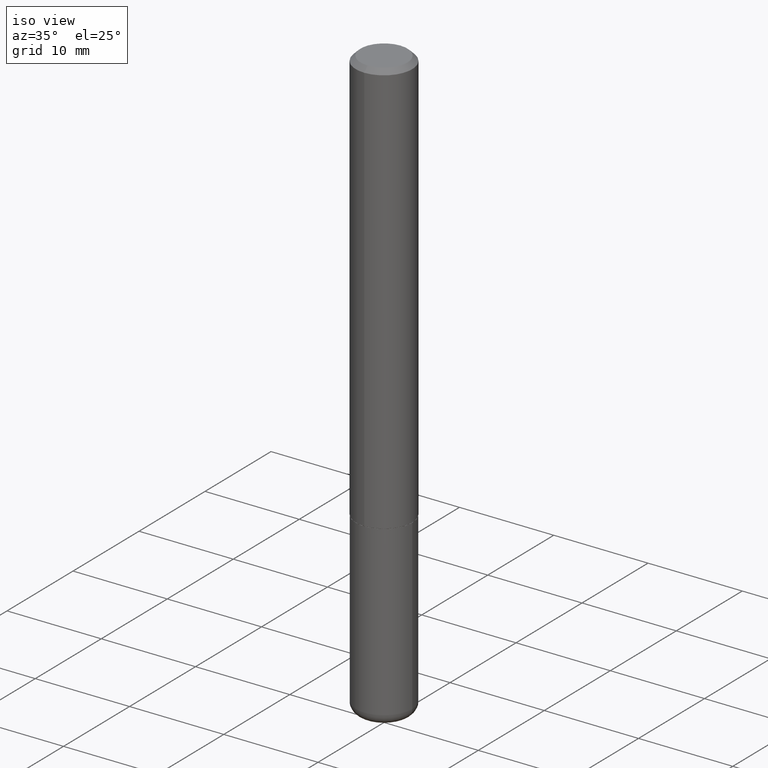
[diagram: clean part render]
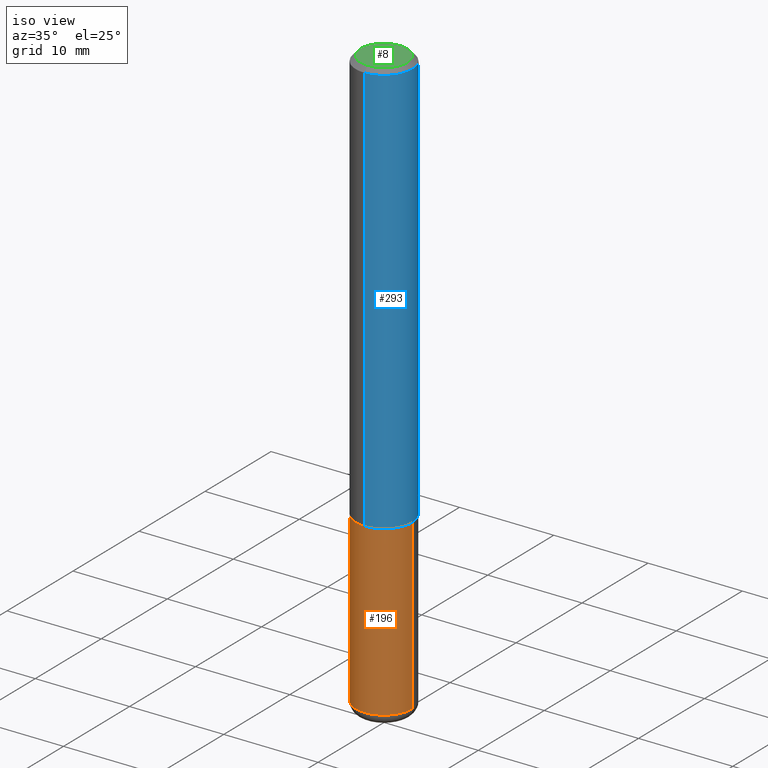
[diagram: same view with three faces highlighted in distinct colors, each labeled with its STEP entity id]
A machine part, iso view with three faces highlighted in distinct colors.
Their STEP definitions:

[orange] entity #196 — the highlighted cylindrical surface (edge-blend (fillet) strip) has radius 2.9997 mm, axis along (-0, 0, 1).
#9 = CARTESIAN_POINT ( 'NONE',  ( 0.1181000000000000383, -6.872981015512730918E-15, -1.732300000000000173 ) ) ;
#11 = CARTESIAN_POINT ( 'NONE',  ( 0.1180999999999999273, -9.327841544853345478E-15, -2.435400000000000453 ) ) ;
#19 = VECTOR ( 'NONE', #417, 39.37007874015748143 ) ;
#30 = LINE ( 'NONE', #286, #19 ) ;
#39 = DIRECTION ( 'NONE',  ( -2.445468806185136877E-29, 3.491481338843145188E-15, 1.000000000000000000 ) ) ;
#61 = CARTESIAN_POINT ( 'NONE',  ( 0.000000000000000000, 0.000000000000000000, 0.000000000000000000 ) ) ;
#67 = ORIENTED_EDGE ( 'NONE', *, *, #366, .T. ) ;
#70 = EDGE_CURVE ( 'NONE', #325, #315, #30, .T. ) ;
#124 = DIRECTION ( 'NONE',  ( -2.445468806185136597E-29, 3.491481338843145583E-15, 1.000000000000000000 ) ) ;
#125 = ORIENTED_EDGE ( 'NONE', *, *, #344, .F. ) ;
#126 = DIRECTION ( 'NONE',  ( -2.445468806185136597E-29, 3.491481338843145583E-15, 1.000000000000000000 ) ) ;
#128 = VERTEX_POINT ( 'NONE', #11 ) ;
#155 = CARTESIAN_POINT ( 'NONE',  ( 4.236285612954512953E-29, -6.048293123277982656E-15, -1.732300000000000173 ) ) ;
#168 = LINE ( 'NONE', #266, #221 ) ;
#176 = FACE_OUTER_BOUND ( 'NONE', #412, .T. ) ;
#196 = ADVANCED_FACE ( 'NONE', ( #176 ), #301, .T. ) ;
#219 = DIRECTION ( 'NONE',  ( 1.000000000000000000, -6.982962677686266711E-15, 4.876176775795935793E-29 ) ) ;
#221 = VECTOR ( 'NONE', #39, 39.37007874015748143 ) ;
#237 = CIRCLE ( 'NONE', #303, 0.1181000000000000383 ) ;
#266 = CARTESIAN_POINT ( 'NONE',  ( 0.1181000000000000383, -8.246878922347483612E-16, 5.758764772215001842E-30 ) ) ;
#286 = CARTESIAN_POINT ( 'NONE',  ( -0.1181000000000000383, 8.391509709326785915E-16, -5.809262341591045886E-30 ) ) ;
#297 = CIRCLE ( 'NONE', #328, 0.1181000000000000383 ) ;
#301 = CYLINDRICAL_SURFACE ( 'NONE', #379, 0.1181000000000000383 ) ;
#303 = AXIS2_PLACEMENT_3D ( 'NONE', #361, #126, #313 ) ;
#313 = DIRECTION ( 'NONE',  ( 1.000000000000000000, -6.982962677686270655E-15, 0.000000000000000000 ) ) ;
#315 = VERTEX_POINT ( 'NONE', #418 ) ;
#316 = EDGE_CURVE ( 'NONE', #325, #128, #237, .T. ) ;
#325 = VERTEX_POINT ( 'NONE', #326 ) ;
#326 = CARTESIAN_POINT ( 'NONE',  ( -0.1180999999999999273, -7.664002681685919807E-15, -2.435400000000000453 ) ) ;
#328 = AXIS2_PLACEMENT_3D ( 'NONE', #155, #398, #330 ) ;
#330 = DIRECTION ( 'NONE',  ( 1.000000000000000000, -6.982962677686270655E-15, 0.000000000000000000 ) ) ;
#344 = EDGE_CURVE ( 'NONE', #315, #377, #297, .T. ) ;
#353 = ORIENTED_EDGE ( 'NONE', *, *, #70, .F. ) ;
#356 = ORIENTED_EDGE ( 'NONE', *, *, #316, .T. ) ;
#361 = CARTESIAN_POINT ( 'NONE',  ( 5.955694730583282706E-29, -8.503153652618598793E-15, -2.435400000000000453 ) ) ;
#366 = EDGE_CURVE ( 'NONE', #128, #377, #168, .T. ) ;
#377 = VERTEX_POINT ( 'NONE', #9 ) ;
#379 = AXIS2_PLACEMENT_3D ( 'NONE', #61, #124, #219 ) ;
#398 = DIRECTION ( 'NONE',  ( -2.445468806185136597E-29, 3.491481338843145583E-15, 1.000000000000000000 ) ) ;
#412 = EDGE_LOOP ( 'NONE', ( #353, #356, #67, #125 ) ) ;
#417 = DIRECTION ( 'NONE',  ( -2.445468806185136877E-29, 3.491481338843145188E-15, 1.000000000000000000 ) ) ;
#418 = CARTESIAN_POINT ( 'NONE',  ( -0.1181000000000000383, -6.436572417015612133E-15, -1.732300000000000173 ) ) ;

[blue] entity #293 — the highlighted cylindrical surface (edge-blend (fillet) strip) has radius 2.9997 mm, axis along (-0, 0, 1).
#1 = FACE_OUTER_BOUND ( 'NONE', #54, .T. ) ;
#3 = AXIS2_PLACEMENT_3D ( 'NONE', #95, #218, #213 ) ;
#4 = VECTOR ( 'NONE', #100, 39.37007874015748143 ) ;
#24 = EDGE_CURVE ( 'NONE', #352, #89, #130, .T. ) ;
#27 = CARTESIAN_POINT ( 'NONE',  ( -8.246878922347489529E-16, -0.1181000000000001354, 4.107366629272151705E-16 ) ) ;
#43 = CIRCLE ( 'NONE', #327, 0.1181000000000000383 ) ;
#45 = EDGE_CURVE ( 'NONE', #216, #62, #43, .T. ) ;
#54 = EDGE_LOOP ( 'NONE', ( #387, #243, #209, #308 ) ) ;
#59 = CARTESIAN_POINT ( 'NONE',  ( 0.000000000000000000, 0.000000000000000000, 0.000000000000000000 ) ) ;
#60 = DIRECTION ( 'NONE',  ( -2.454972276574099560E-29, 3.477871828342207541E-15, 1.000000000000000000 ) ) ;
#62 = VERTEX_POINT ( 'NONE', #85 ) ;
#64 = EDGE_CURVE ( 'NONE', #352, #216, #321, .T. ) ;
#85 = CARTESIAN_POINT ( 'NONE',  ( 8.246878922347486570E-16, 0.1180999999999999689, -0.02000000000000048614 ) ) ;
#89 = VERTEX_POINT ( 'NONE', #97 ) ;
#91 = DIRECTION ( 'NONE',  ( -2.454972276574099840E-29, 3.477871828342207935E-15, 1.000000000000000000 ) ) ;
#95 = CARTESIAN_POINT ( 'NONE',  ( 4.250293502432739127E-29, -6.021239496408864646E-15, -1.731300000000000283 ) ) ;
#97 = CARTESIAN_POINT ( 'NONE',  ( 8.391509709327008768E-16, 0.1180999999999941957, -1.731300000000000727 ) ) ;
#100 = DIRECTION ( 'NONE',  ( -2.454972276574099840E-29, 3.477871828342207935E-15, 1.000000000000000000 ) ) ;
#104 = CARTESIAN_POINT ( 'NONE',  ( -8.246878922347070446E-16, -0.1181000000000062417, -1.731299999999999617 ) ) ;
#130 = CIRCLE ( 'NONE', #3, 0.1181000000000002187 ) ;
#188 = CARTESIAN_POINT ( 'NONE',  ( 4.909944553148218457E-31, -6.955743656684441311E-17, -0.02000000000000007674 ) ) ;
#209 = ORIENTED_EDGE ( 'NONE', *, *, #45, .F. ) ;
#213 = DIRECTION ( 'NONE',  ( -6.982962677686265922E-15, -1.000000000000000000, 4.626330217890360659E-15 ) ) ;
#216 = VERTEX_POINT ( 'NONE', #314 ) ;
#218 = DIRECTION ( 'NONE',  ( -2.454972276574099560E-29, 3.477871828342207541E-15, 1.000000000000000000 ) ) ;
#225 = DIRECTION ( 'NONE',  ( -6.982962677686265922E-15, -1.000000000000000000, 3.477871828342207541E-15 ) ) ;
#243 = ORIENTED_EDGE ( 'NONE', *, *, #279, .T. ) ;
#279 = EDGE_CURVE ( 'NONE', #89, #62, #288, .T. ) ;
#285 = DIRECTION ( 'NONE',  ( -2.454972276574099560E-29, 3.477871828342207541E-15, 1.000000000000000000 ) ) ;
#288 = LINE ( 'NONE', #416, #4 ) ;
#293 = ADVANCED_FACE ( 'NONE', ( #1 ), #350, .T. ) ;
#308 = ORIENTED_EDGE ( 'NONE', *, *, #64, .F. ) ;
#314 = CARTESIAN_POINT ( 'NONE',  ( -8.102248135368175393E-16, -0.1181000000000001077, -0.01999999999999966735 ) ) ;
#321 = LINE ( 'NONE', #27, #396 ) ;
#327 = AXIS2_PLACEMENT_3D ( 'NONE', #188, #60, #383 ) ;
#350 = CYLINDRICAL_SURFACE ( 'NONE', #368, 0.1181000000000001354 ) ;
#352 = VERTEX_POINT ( 'NONE', #104 ) ;
#368 = AXIS2_PLACEMENT_3D ( 'NONE', #59, #285, #225 ) ;
#383 = DIRECTION ( 'NONE',  ( -6.982962677686265922E-15, -1.000000000000000000, 3.469747663417776213E-15 ) ) ;
#387 = ORIENTED_EDGE ( 'NONE', *, *, #24, .T. ) ;
#396 = VECTOR ( 'NONE', #91, 39.37007874015748143 ) ;
#416 = CARTESIAN_POINT ( 'NONE',  ( 8.391509709326791832E-16, 0.1181000000000001354, -4.107366629272151705E-16 ) ) ;

[green] entity #8 — the highlighted planar face has unit normal (0, -0, -1).
#8 = ADVANCED_FACE ( 'NONE', ( #409 ), #376, .F. ) ;
#13 = CARTESIAN_POINT ( 'NONE',  ( 2.023801329356262435E-45, -2.867047296905476188E-31, -8.243683029204983440E-17 ) ) ;
#20 = CIRCLE ( 'NONE', #367, 0.09810000000000010378 ) ;
#50 = DIRECTION ( 'NONE',  ( -2.454972276574099560E-29, 3.477871828342207541E-15, 1.000000000000000000 ) ) ;
#103 = AXIS2_PLACEMENT_3D ( 'NONE', #311, #154, #156 ) ;
#117 = VERTEX_POINT ( 'NONE', #137 ) ;
#137 = CARTESIAN_POINT ( 'NONE',  ( -7.416198335591027009E-16, -0.09810000000000010378, 2.587423960683210956E-16 ) ) ;
#140 = DIRECTION ( 'NONE',  ( -2.454972276574099560E-29, 3.477871828342207541E-15, 1.000000000000000000 ) ) ;
#154 = DIRECTION ( 'NONE',  ( 2.454972276574098999E-29, -3.477871828342207935E-15, -1.000000000000000000 ) ) ;
#156 = DIRECTION ( 'NONE',  ( 6.982962677686265922E-15, 1.000000000000000000, -3.477871828342207935E-15 ) ) ;
#157 = EDGE_CURVE ( 'NONE', #117, #178, #389, .T. ) ;
#169 = EDGE_CURVE ( 'NONE', #178, #117, #20, .T. ) ;
#178 = VERTEX_POINT ( 'NONE', #337 ) ;
#191 = EDGE_LOOP ( 'NONE', ( #304, #284 ) ) ;
#201 = AXIS2_PLACEMENT_3D ( 'NONE', #13, #50, #205 ) ;
#205 = DIRECTION ( 'NONE',  ( -6.982962677686267499E-15, -1.000000000000000000, 3.477871828342207541E-15 ) ) ;
#284 = ORIENTED_EDGE ( 'NONE', *, *, #157, .T. ) ;
#304 = ORIENTED_EDGE ( 'NONE', *, *, #169, .T. ) ;
#311 = CARTESIAN_POINT ( 'NONE',  ( 6.850286386810235398E-16, 0.09810000000000010378, -3.823976415063958595E-16 ) ) ;
#337 = CARTESIAN_POINT ( 'NONE',  ( 7.548582654578861477E-16, 0.09810000000000010378, -4.236160566524207151E-16 ) ) ;
#367 = AXIS2_PLACEMENT_3D ( 'NONE', #378, #140, #400 ) ;
#376 = PLANE ( 'NONE',  #103 ) ;
#378 = CARTESIAN_POINT ( 'NONE',  ( 2.023801329356262435E-45, -2.867047296905476188E-31, -8.243683029204983440E-17 ) ) ;
#389 = CIRCLE ( 'NONE', #201, 0.09810000000000010378 ) ;
#400 = DIRECTION ( 'NONE',  ( -6.982962677686267499E-15, -1.000000000000000000, 3.477871828342207541E-15 ) ) ;
#409 = FACE_OUTER_BOUND ( 'NONE', #191, .T. ) ;